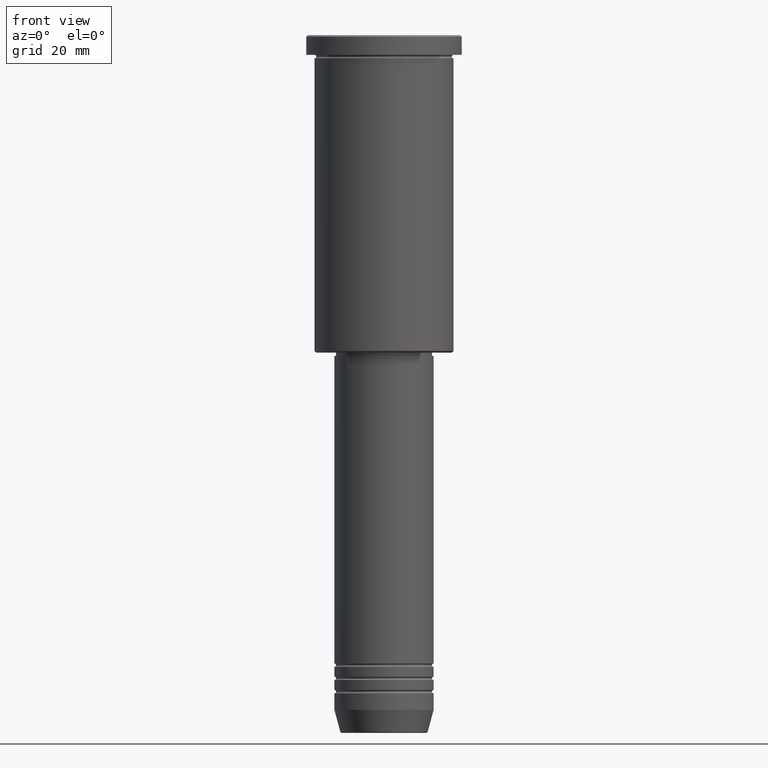
[diagram: clean part render]
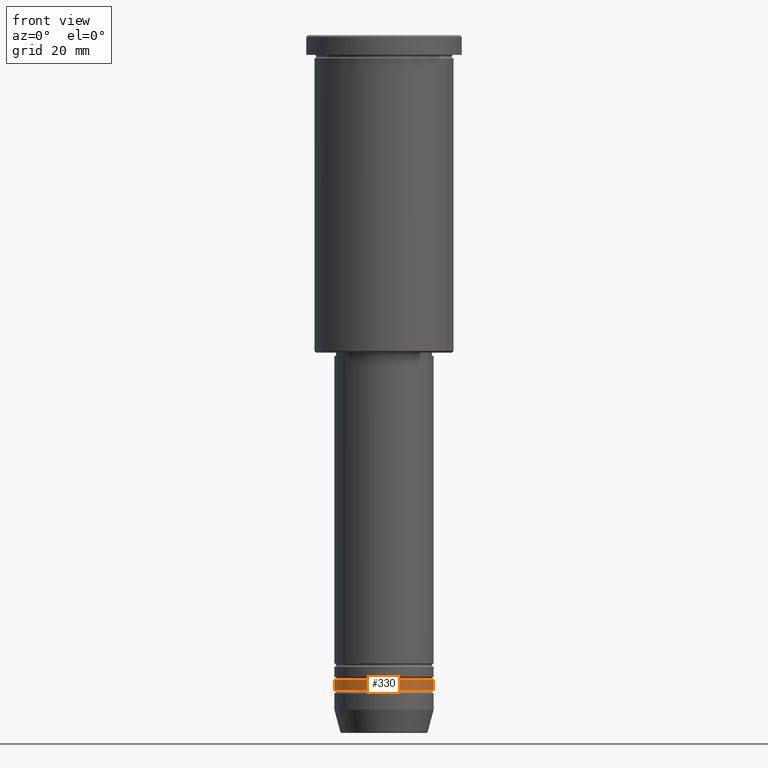
[diagram: same view with one face highlighted and labeled with its STEP entity id]
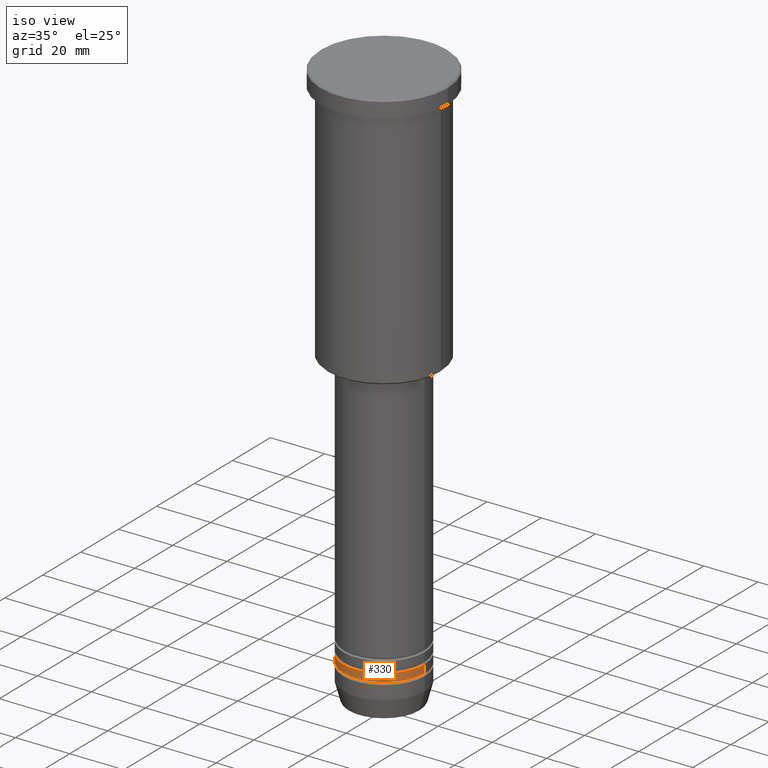
[diagram: same view with one face highlighted and labeled with its STEP entity id]
A machine part, front view. The second image highlights one B-rep face of the part: STEP entity #330.
A second angle (iso view) of the same face is appended — the face is thin or edge-on in the first view.
In plain terms, the highlighted cylindrical surface (partial cylindrical patch) has radius 15 mm, axis along (-0, -0, 1).
Its self-contained STEP definition (entity closure, byte-faithful):
#35 = FACE_OUTER_BOUND ( 'NONE', #156, .T. ) ;
#58 = ORIENTED_EDGE ( 'NONE', *, *, #689, .T. ) ;
#130 = DIRECTION ( 'NONE',  ( -0.000000000000000000, -0.000000000000000000, 1.000000000000000000 ) ) ;
#156 = EDGE_LOOP ( 'NONE', ( #438, #58, #883, #859 ) ) ;
#165 = CIRCLE ( 'NONE', #1102, 15.00000000000000000 ) ;
#168 = VERTEX_POINT ( 'NONE', #560 ) ;
#221 = CARTESIAN_POINT ( 'NONE',  ( -15.00000000000000000, 1.836970198721029589E-15, 0.000000000000000000 ) ) ;
#231 = CARTESIAN_POINT ( 'NONE',  ( 15.00000000000000000, 0.000000000000000000, -197.9999999999998863 ) ) ;
#240 = DIRECTION ( 'NONE',  ( -0.000000000000000000, -0.000000000000000000, 1.000000000000000000 ) ) ;
#252 = DIRECTION ( 'NONE',  ( -0.000000000000000000, -0.000000000000000000, 1.000000000000000000 ) ) ;
#286 = CIRCLE ( 'NONE', #1179, 15.00000000000000000 ) ;
#292 = DIRECTION ( 'NONE',  ( -0.000000000000000000, -0.000000000000000000, 1.000000000000000000 ) ) ;
#309 = LINE ( 'NONE', #670, #362 ) ;
#326 = CARTESIAN_POINT ( 'NONE',  ( 0.000000000000000000, 0.000000000000000000, -197.9999999999998863 ) ) ;
#330 = ADVANCED_FACE ( 'NONE', ( #35 ), #402, .T. ) ;
#362 = VECTOR ( 'NONE', #292, 1000.000000000000000 ) ;
#402 = CYLINDRICAL_SURFACE ( 'NONE', #606, 15.00000000000000000 ) ;
#419 = DIRECTION ( 'NONE',  ( -0.000000000000000000, -0.000000000000000000, 1.000000000000000000 ) ) ;
#438 = ORIENTED_EDGE ( 'NONE', *, *, #645, .F. ) ;
#484 = CARTESIAN_POINT ( 'NONE',  ( 15.00000000000000000, 0.000000000000000000, -194.9999999999999147 ) ) ;
#497 = DIRECTION ( 'NONE',  ( 1.000000000000000000, 0.000000000000000000, 0.000000000000000000 ) ) ;
#560 = CARTESIAN_POINT ( 'NONE',  ( -15.00000000000000000, 1.836970198721029589E-15, -197.9999999999998863 ) ) ;
#564 = CARTESIAN_POINT ( 'NONE',  ( -15.00000000000000000, 1.836970198721029589E-15, -194.9999999999999147 ) ) ;
#606 = AXIS2_PLACEMENT_3D ( 'NONE', #948, #130, #497 ) ;
#607 = EDGE_CURVE ( 'NONE', #1147, #1056, #309, .T. ) ;
#609 = VECTOR ( 'NONE', #240, 1000.000000000000000 ) ;
#620 = VERTEX_POINT ( 'NONE', #564 ) ;
#621 = DIRECTION ( 'NONE',  ( 1.000000000000000000, 0.000000000000000000, 0.000000000000000000 ) ) ;
#645 = EDGE_CURVE ( 'NONE', #168, #620, #861, .T. ) ;
#670 = CARTESIAN_POINT ( 'NONE',  ( 15.00000000000000000, 0.000000000000000000, 0.000000000000000000 ) ) ;
#689 = EDGE_CURVE ( 'NONE', #168, #1147, #165, .T. ) ;
#691 = DIRECTION ( 'NONE',  ( 1.000000000000000000, 0.000000000000000000, 0.000000000000000000 ) ) ;
#855 = EDGE_CURVE ( 'NONE', #620, #1056, #286, .T. ) ;
#859 = ORIENTED_EDGE ( 'NONE', *, *, #855, .F. ) ;
#861 = LINE ( 'NONE', #221, #609 ) ;
#883 = ORIENTED_EDGE ( 'NONE', *, *, #607, .T. ) ;
#948 = CARTESIAN_POINT ( 'NONE',  ( 0.000000000000000000, 0.000000000000000000, 0.000000000000000000 ) ) ;
#992 = CARTESIAN_POINT ( 'NONE',  ( 0.000000000000000000, 0.000000000000000000, -194.9999999999999147 ) ) ;
#1056 = VERTEX_POINT ( 'NONE', #484 ) ;
#1102 = AXIS2_PLACEMENT_3D ( 'NONE', #326, #419, #691 ) ;
#1147 = VERTEX_POINT ( 'NONE', #231 ) ;
#1179 = AXIS2_PLACEMENT_3D ( 'NONE', #992, #252, #621 ) ;